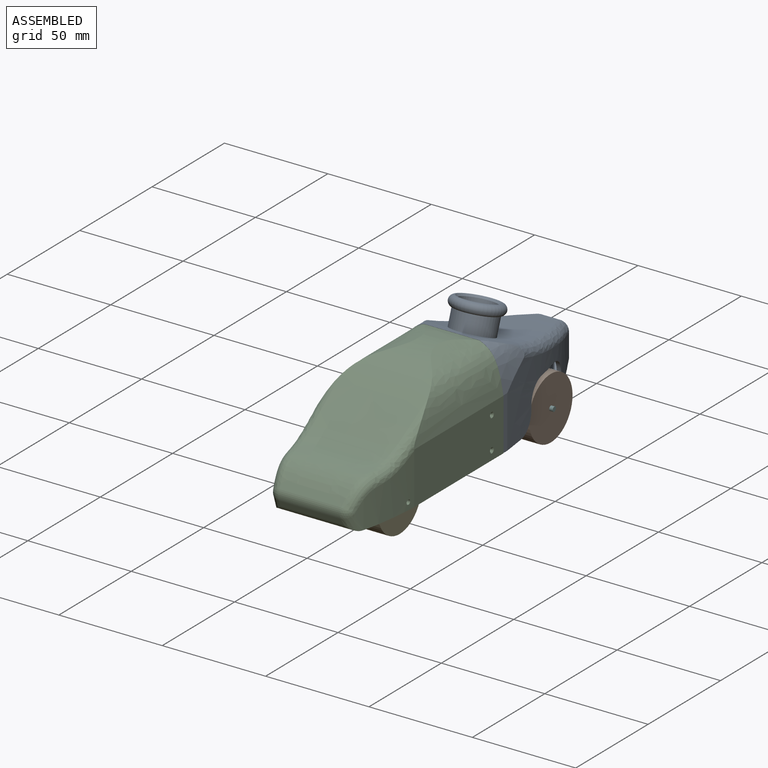
[diagram: assembled view]
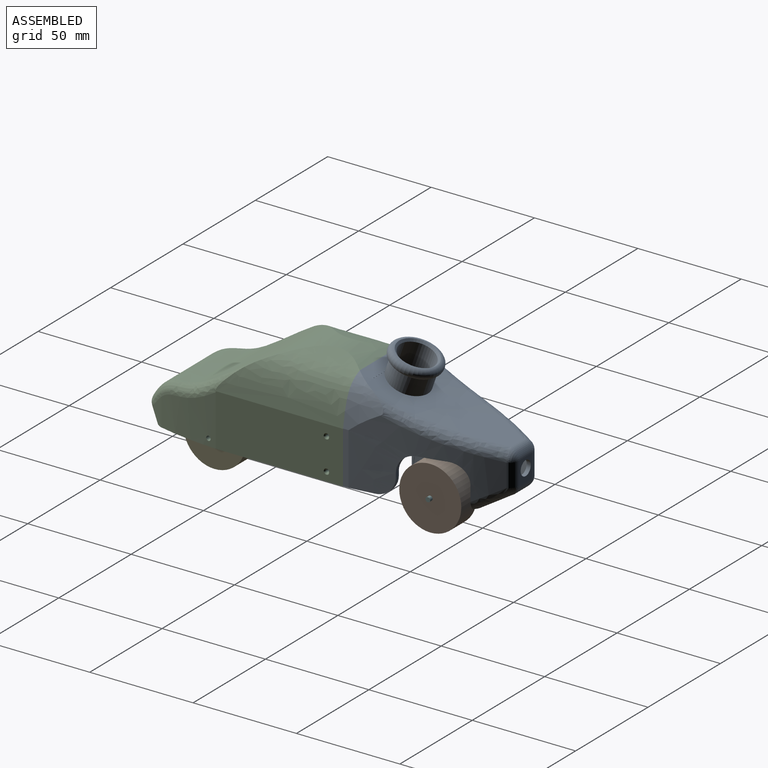
[diagram: assembled view, second angle]
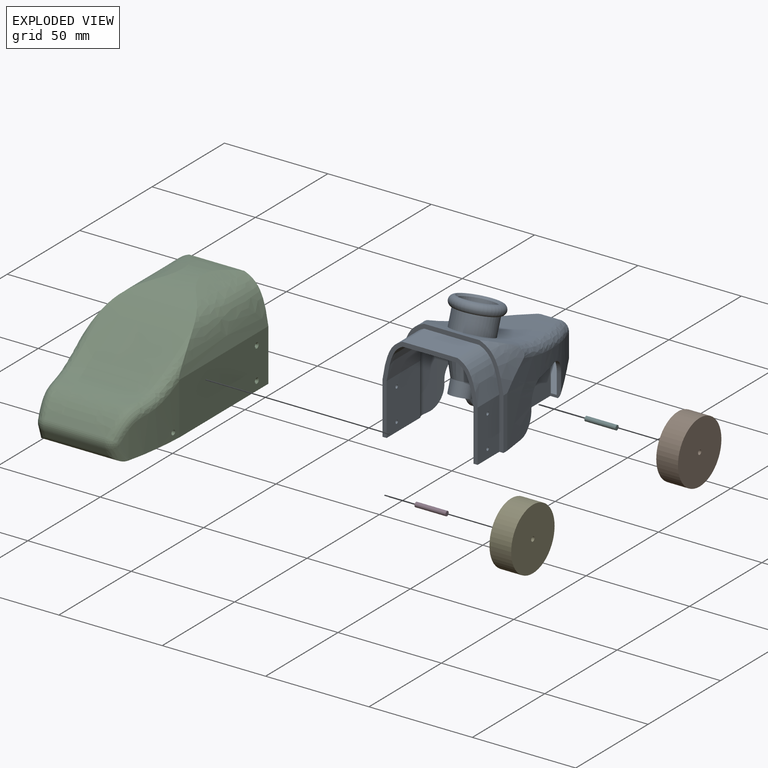
[diagram: exploded view]
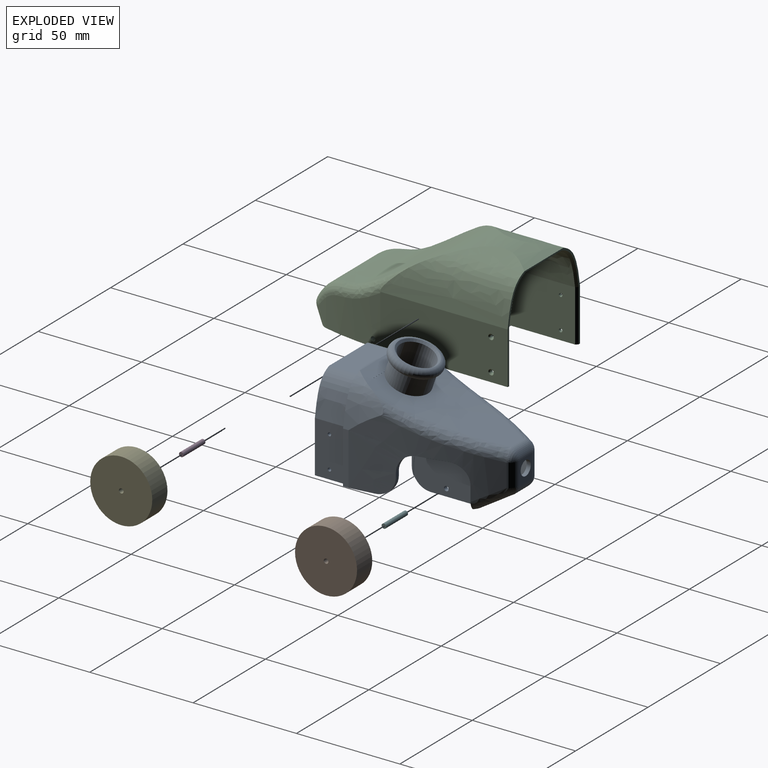
[diagram: exploded view, second angle]
ASSEMBLY  parts=6 mates=5
PART A: 112 faces, bbox 53.6x87.9x60.9 mm
  f0: plane 26.12x17.42mm, normal (0,-0.5,0.87), area 356.7mm2, adj f1,f2,f8,f15,f22,f67,f68,f69
  f1: extruded ~57.18x36.15mm, area 1111.7mm2, adj f0,f3,f9,f14,f22,f45,f74,f75
  f2: extruded ~57.18x36.15mm, area 1111.7mm2, adj f0,f4,f9,f13,f22,f46,f80,f81
  f3: plane 29.55x4.05mm, normal (0,0,-1), area 75mm2, adj f1,f5,f16,f23,f24,f26,f28,f45
  f4: plane 29.55x4.05mm, normal (0,0,-1), area 75mm2, adj f2,f6,f17,f23,f25,f26,f31,f46
  f5: extruded ~65.35x34.63mm, area 1174.5mm2, adj f3,f7,f16,f19,f44,f59,f74,f75
  f6: extruded ~65.35x34.63mm, area 1174.5mm2, adj f4,f17,f18,f42,f43,f52,f80,f81
  f7: bspline ~17.69x13.23mm, area 115mm2, adj f5,f15,f20,f58,f74
  f8: plane 32.01x31.57mm, normal (-1,0,0), area 327.1mm2, adj f0,f72,f73,f74,f77,f79,f88,f101
  f9: extruded ~63.04x40.99mm, area 1263.2mm2, adj f1,f2,f13,f14,f22,f33,f34,f35
  f10: plane 8.69x0.04mm, normal (0,1,0), area 0.3mm2, adj f11,f12,f40,f61
  f11: plane 8.77x0.09mm, normal (0,0,1), area 0.8mm2, adj f10,f12,f40,f61
  f12: extruded ~66.91x38.48mm, area 1648.5mm2, adj f10,f11,f18,f19,f23,f38,f39,f40
  f13: extruded ~14.59x10.3mm, area 63.7mm2, adj f2,f9,f46
  f14: extruded ~14.59x10.3mm, area 63.7mm2, adj f1,f9,f45
  f15: plane 26.96x25.35mm, normal (0,0,-1), area 178.2mm2, adj f0,f7,f20,f42,f69,f71,f74,f76
  f16: plane 25.19x2.63mm, normal (-1,0,0), area 66.3mm2, adj f3,f5,f19,f23
  f17: plane 25.19x2.63mm, normal (1,0,0), area 66.3mm2, adj f4,f6,f18,f23
  f18: extruded ~21.04x17.77mm, area 259mm2, adj f6,f12,f17,f23,f43
  f19: extruded ~21.04x17.77mm, area 259mm2, adj f5,f12,f16,f23,f44
  f20: plane 19.38x12.06mm, normal (0,0.5,-0.87), area 200.7mm2, adj f7,f15,f42,f56
  f21: plane 11.04x9.01mm, normal (0,1,0), area 61mm2, adj f51,f52,f55,f56,f59
  f22: plane 15.19x12.84mm, normal (0,-1,0), area 156.6mm2, adj f0,f1,f2,f9,f51
  f23: plane 53.64x48.74mm, normal (0,-1,0), area 253.3mm2, adj f3,f4,f12,f16,f17,f18,f19,f27
  f24: plane 24.9x23.21mm, normal (1,0,0), area 573.6mm2, adj f3,f26,f37,f45,f49,f50
  f25: plane 24.9x23.21mm, normal (-1,0,0), area 573.6mm2, adj f4,f26,f34,f46,f47,f48
  f26: plane 46x44.13mm, normal (0,-1,0), area 240.1mm2, adj f3,f4,f24,f25,f27,f28,f29,f30
  f27: plane 26.55x15mm, normal (0,0,1), area 398.2mm2, adj f23,f26,f29,f30
  f28: plane 25.05x15mm, normal (-1,0,0), area 371.4mm2, adj f3,f23,f26,f29,f49,f50
  f29: extruded ~19.08x15mm, area 338.1mm2, adj f23,f26,f27,f28
  f30: extruded ~15x2.8mm, area 48.1mm2, adj f23,f26,f27,f32
  f31: plane 25.05x15mm, normal (1,0,0), area 371.4mm2, adj f4,f23,f26,f32,f47,f48
  f32: extruded ~17.54x15mm, area 290mm2, adj f23,f26,f30,f31
  f33: plane 3.59x2.97mm, normal (0,1,0), area 4.4mm2, adj f9,f34,f46
  f34: extruded ~23.21x17.11mm, area 426.5mm2, adj f9,f25,f26,f33,f35,f46
  f35: plane 26.23x20.82mm, normal (0,0,-1), area 532.6mm2, adj f9,f26,f34,f37,f66
  f36: plane 3.59x2.97mm, normal (0,1,0), area 4.4mm2, adj f9,f37,f45
  f37: extruded ~23.21x17.11mm, area 426.5mm2, adj f9,f24,f26,f35,f36,f45
  f38: plane 8.69x0.04mm, normal (0,1,0), area 0.3mm2, adj f12,f39,f41,f61
  f39: plane 8.77x0.09mm, normal (0,0,1), area 0.8mm2, adj f12,f38,f41,f61
  f40: extruded ~0.09x0.09mm, area 0mm2, adj f10,f11,f12
  f41: extruded ~0.09x0.09mm, area 0mm2, adj f12,f38,f39
  f42: bspline ~20.54x14.85mm, area 115mm2, adj f6,f15,f20,f54,f81
  f43: bspline ~63.6x21.4mm, area 438.3mm2, adj f6,f12,f18,f53
  f44: bspline ~63.6x21.4mm, area 438.3mm2, adj f5,f12,f19,f57
  f45: cylinder r=5mm len=41.94mm, axis (0,0,-1), area 146mm2, adj f1,f3,f9,f14,f24,f36,f37
  f46: cylinder r=5mm len=41.94mm, axis (0,0,-1), area 146mm2, adj f2,f4,f9,f13,f25,f33,f34
  f47: cylinder r=0.82mm len=2mm, axis (-1,0,0), area 10.4mm2, adj f25,f31
  f48: cylinder r=0.82mm len=2mm, axis (-1,0,0), area 10.4mm2, adj f25,f31
  f49: cylinder r=0.82mm len=2mm, axis (-1,0,0), area 10.4mm2, adj f24,f28
  f50: cylinder r=0.82mm len=2mm, axis (-1,0,0), area 10.4mm2, adj f24,f28
  f51: cylinder r=3.5mm len=7mm, axis (0,1,0), area 44mm2, adj f21,f22
  f52: cylinder r=5mm len=11.04mm, axis (0,0,-1), area 62.6mm2, adj f6,f21,f53,f54
  f53: sphere r=5mm, area 34.6mm2, adj f43,f52,f55
  f54: sphere r=5mm, area 9.7mm2, adj f42,f52,f56
  f55: cylinder r=5mm len=9.01mm, axis (-1,0,0), area 61.3mm2, adj f12,f21,f53,f57
  f56: cylinder r=5mm len=9.01mm, axis (1,0,0), area 47.2mm2, adj f20,f21,f54,f58
  f57: sphere r=5mm, area 30mm2, adj f44,f55,f59
  f58: sphere r=5mm, area 17.6mm2, adj f7,f56,f59
  f59: cylinder r=5mm len=11.04mm, axis (0,0,-1), area 62.6mm2, adj f5,f21,f57,f58
  f60: cylinder r=8.5mm len=22.59mm, axis (0,0.33,0.94), area 961.3mm2, adj f65,f106
  f61: cylinder r=10mm len=21.79mm, axis (0,-0.33,-0.94), area 534.7mm2, adj f10,f11,f12,f38,f39,f63
  f62: cylinder r=12mm len=24mm, axis (0,-0.33,-0.94), area 3.8mm2, adj f63,f64
  f63: torus R=9.5mm, axis (0,-0.33,-0.94), area 242.8mm2, adj f61,f62
  f64: torus R=9.5mm, axis (0,0.33,0.94), area 273.7mm2, adj f62,f65
  f65: cone r=9.5mm half-angle=45deg, axis (0,0.33,0.94), area 80mm2, adj f60,f64
  f66: cylinder r=10mm len=20.16mm, axis (0,0.33,0.94), area 215.9mm2, adj f9,f35,f89,f90,f91,f92,f108
  f67: plane 32.01x31.57mm, normal (1,0,0), area 327.1mm2, adj f0,f68,f70,f81,f83,f85,f93,f97
  f68: plane 26.61x7.72mm, normal (0,1,0), area 68.7mm2, adj f0,f9,f67,f69,f91,f93
  f69: plane 32.84x32.01mm, normal (-1,0,0), area 895.4mm2, adj f0,f15,f68,f70,f86,f91,f105
  f70: plane 24.7x2.79mm, normal (0,-1,0), area 61.8mm2, adj f67,f69,f91,f92,f93,f105
  f71: plane 32.84x32.01mm, normal (1,0,0), area 895.4mm2, adj f0,f15,f72,f73,f87,f89,f104
  f72: plane 26.61x7.72mm, normal (0,1,0), area 68.7mm2, adj f0,f8,f9,f71,f88,f89
  f73: plane 24.7x2.79mm, normal (0,-1,0), area 61.8mm2, adj f8,f71,f88,f89,f90,f104
  f74: plane 11.4x5.65mm, normal (0,-1,0), area 28mm2, adj f0,f1,f5,f7,f8,f15,f76,f95
  f75: plane 14.27x6.18mm, normal (0,0,-1), area 26.7mm2, adj f1,f5,f95,f102
  f76: plane 31x20mm, normal (-1,0,0), area 569.7mm2, adj f15,f74,f77,f79,f87,f101,f103,f104
  f77: plane 5.96x0.25mm, normal (0,1,0), area 1.5mm2, adj f8,f76,f101,f104
  f78: plane 2.03x2mm, normal (0,1,0), area 4.1mm2, adj f1,f5,f100,f102
  f79: plane 13x0.25mm, normal (0,0,-1), area 3.2mm2, adj f8,f76,f101,f103
  f80: plane 2.03x2mm, normal (0,1,0), area 4.1mm2, adj f2,f6,f96,f99
  f81: plane 11.4x5.65mm, normal (0,-1,0), area 28mm2, adj f0,f2,f6,f15,f42,f67,f84,f94
  f82: plane 14.27x6.23mm, normal (0,0,-1), area 26.7mm2, adj f2,f6,f94,f99
  f83: plane 5.96x0.25mm, normal (0,1,0), area 1.5mm2, adj f67,f84,f97,f105
  f84: plane 31x20mm, normal (1,0,0), area 569.7mm2, adj f15,f81,f83,f85,f86,f97,f98,f105
  f85: plane 13x0.25mm, normal (0,0,-1), area 3.3mm2, adj f67,f84,f97,f98
  f86: cylinder r=1.12mm len=2.25mm, axis (-1,0,0), area 15.9mm2, adj f69,f84
  f87: cylinder r=1.12mm len=2.25mm, axis (-1,0,0), area 15.9mm2, adj f71,f76
  f88: bspline ~42.09x12.57mm, area 132.1mm2, adj f8,f9,f72,f73,f90
  f89: bspline ~42.09x12.57mm, area 131.6mm2, adj f9,f66,f71,f72,f73,f90
  f90: cylinder r=2.5mm len=6.93mm, axis (-1,0,0), area 15.2mm2, adj f9,f66,f73,f88,f89
  f91: bspline ~42.09x12.57mm, area 131.6mm2, adj f9,f66,f68,f69,f70,f92
  f92: cylinder r=2.5mm len=6.93mm, axis (-1,0,0), area 15.2mm2, adj f9,f66,f70,f91,f93
  f93: bspline ~42.09x12.57mm, area 132.1mm2, adj f9,f67,f68,f70,f92
  f94: cylinder r=9mm len=9mm, axis (1,0,0), area 29.6mm2, adj f2,f6,f81,f82
  f95: cylinder r=9mm len=9mm, axis (1,0,0), area 29.6mm2, adj f1,f5,f74,f75
  f96: cylinder r=9mm len=9mm, axis (-1,0,0), area 28.6mm2, adj f2,f4,f6,f80
  f97: cylinder r=9mm len=9mm, axis (-1,0,0), area 3.5mm2, adj f67,f83,f84,f85
  f98: cylinder r=9mm len=9mm, axis (1,0,0), area 3.5mm2, adj f67,f81,f84,f85
  f99: cylinder r=9mm len=9mm, axis (-1,0,0), area 28.7mm2, adj f2,f6,f80,f82
  f100: cylinder r=9mm len=9mm, axis (-1,0,0), area 28.6mm2, adj f1,f3,f5,f78
  f101: cylinder r=9mm len=9mm, axis (-1,0,0), area 3.5mm2, adj f8,f76,f77,f79
  f102: cylinder r=9mm len=9mm, axis (-1,0,0), area 28.7mm2, adj f1,f5,f75,f78
  f103: cylinder r=9mm len=9mm, axis (1,0,0), area 3.5mm2, adj f8,f74,f76,f79
  f104: cylinder r=9mm len=9mm, axis (1,0,0), area 32.8mm2, adj f8,f15,f71,f73,f76,f77
  f105: cylinder r=9mm len=9mm, axis (1,0,0), area 32.8mm2, adj f15,f67,f69,f70,f83,f84
  f106: plane 17x16.06mm, normal (0,0.33,0.94), area 4.7mm2, adj f60,f107
  f107: cone r=8.41mm half-angle=19.2deg, axis (0,0.33,0.94), area 559.1mm2, adj f106,f110
  f108: cone r=10mm half-angle=19.2deg, axis (0,0.33,0.94), area 708.2mm2, adj f66,f109
  f109: cylinder r=5.09mm len=11.75mm, axis (0,0.33,0.94), area 207.8mm2, adj f108,f111
  f110: cylinder r=3.5mm len=8.75mm, axis (0,0.33,0.94), area 142.9mm2, adj f107,f111
  f111: plane 10.18x9.61mm, normal (0,-0.33,-0.94), area 42.9mm2, adj f109,f110
PART B: 4 faces, bbox 10.5x30x30 mm
  f0: cylinder r=1.12mm len=10.5mm, axis (-1,0,0), area 74.2mm2, adj f2,f3
  f1: cylinder r=15mm len=30mm, axis (-1,0,0), area 989.6mm2, adj f2,f3
  f2: plane 30x30mm, normal (1,0,0), area 702.9mm2, adj f0,f1
  f3: plane 30x30mm, normal (-1,0,0), area 702.9mm2, adj f0,f1
PART C: 62 faces, bbox 52.7x99.8x54 mm
  f0: plane 13.53x1.78mm, normal (0,-1,0), area 24.1mm2, adj f7,f47,f51,f55
  f1: plane 19.5x13.53mm, normal (0,-1,0), area 263.8mm2, adj f42,f45,f51,f53
  f2: extruded ~33.52x24.62mm, area 572.6mm2, adj f20,f24,f30,f33,f48
  f3: extruded ~33.52x24.62mm, area 572.6mm2, adj f4,f22,f26,f27,f50
  f4: plane 91.94x6.72mm, normal (0,0,-1), area 188.2mm2, adj f3,f5,f8,f13,f17,f22,f25,f26
  f5: plane 45.84x24.5mm, normal (0,1,0), area 624.5mm2, adj f4,f12,f13,f24,f42,f43,f44,f45
  f6: plane 13.53x1.78mm, normal (0,-1,0), area 24.1mm2, adj f8,f43,f51,f56
  f7: extruded ~32.21x21.53mm, area 529.3mm2, adj f0,f11,f18,f24,f28,f51,f55
  f8: extruded ~32.21x21.53mm, area 529.3mm2, adj f4,f6,f11,f18,f28,f51,f56
  f9: extruded ~59.24x44.82mm, area 2252.2mm2, adj f14,f16,f52,f59
  f10: plane 30.77x3.25mm, normal (0,-0.89,-0.45), area 110.2mm2, adj f26,f28,f30,f31
  f11: plane 36.62x8.43mm, normal (0,0.89,0.45), area 327.7mm2, adj f7,f8,f18,f28
  f12: extruded ~25.55x1.23mm, area 31.2mm2, adj f5,f14,f15,f24,f52
  f13: extruded ~25.55x1.23mm, area 31.2mm2, adj f4,f5,f16,f17,f52
  f14: extruded ~61.68x21.66mm, area 1273mm2, adj f9,f12,f15,f52,f58,f59
  f15: plane 60.56x25.05mm, normal (-1,0,0), area 1512.6mm2, adj f12,f14,f24,f36,f37,f57
  f16: extruded ~61.68x21.66mm, area 1273mm2, adj f9,f13,f17,f52,f59,f60
  f17: plane 60.56x25.05mm, normal (1,0,0), area 1512.6mm2, adj f4,f13,f16,f34,f35,f61
  f18: extruded ~43.7x22.62mm, area 1047.1mm2, adj f7,f8,f11,f51
  f19: extruded ~61.41x23.51mm, area 1429.8mm2, adj f20,f23,f25,f33
  f20: plane 61.71x25.27mm, normal (1,0,0), area 1541.2mm2, adj f2,f19,f24,f25,f33,f38,f39
  f21: extruded ~61.41x23.51mm, area 1429.8mm2, adj f22,f23,f25,f27
  f22: plane 61.71x25.27mm, normal (-1,0,0), area 1541.2mm2, adj f3,f4,f21,f25,f27,f40,f41
  f23: extruded ~97.76x41.39mm, area 3825.8mm2, adj f19,f21,f25,f27,f31,f33
  f24: plane 91.95x6.73mm, normal (0,0,-1), area 188.9mm2, adj f2,f5,f7,f12,f15,f20,f25,f28
  f25: plane 52.74x47.85mm, normal (0,1,0), area 120.9mm2, adj f4,f19,f20,f21,f22,f23,f24,f57
  f26: bspline ~15x9.98mm, area 44.4mm2, adj f3,f4,f10,f28,f29
  f27: bspline ~56.6x33.88mm, area 361.8mm2, adj f3,f21,f22,f23,f29
  f28: cylinder r=5mm len=40.9mm, axis (-1,0,0), area 165.3mm2, adj f4,f7,f8,f10,f11,f24,f26,f30
  f29: sphere r=5mm, area 15.9mm2, adj f26,f27,f31
  f30: bspline ~15x9.98mm, area 44.4mm2, adj f2,f10,f24,f28,f32
  f31: cylinder r=5mm len=29.72mm, axis (-1,0,0), area 154.8mm2, adj f10,f23,f29,f32
  f32: sphere r=5mm, area 15.9mm2, adj f30,f31,f33
  f33: bspline ~56.6x33.88mm, area 361.8mm2, adj f2,f19,f20,f23,f32
  f34: cylinder r=0.82mm len=1.65mm, axis (-1,0,0), area 7.8mm2, adj f17,f41
  f35: cylinder r=0.82mm len=1.65mm, axis (-1,0,0), area 7.8mm2, adj f17,f40
  f36: cylinder r=0.82mm len=1.65mm, axis (-1,0,0), area 7.8mm2, adj f15,f39
  f37: cylinder r=0.82mm len=1.65mm, axis (-1,0,0), area 7.8mm2, adj f15,f38
  f38: cone r=0.82mm half-angle=45deg, axis (1,0,0), area 4.8mm2, adj f20,f37
  f39: cone r=0.82mm half-angle=45deg, axis (1,0,0), area 4.8mm2, adj f20,f36
  f40: cone r=1.32mm half-angle=45deg, axis (-1,0,0), area 4.8mm2, adj f22,f35
  f41: cone r=1.32mm half-angle=45deg, axis (-1,0,0), area 4.8mm2, adj f22,f34
  f42: plane 19.5x6.4mm, normal (-1,0,0), area 88.8mm2, adj f1,f5,f44,f49,f51,f53,f54
  f43: plane 20x6.4mm, normal (1,0,0), area 93mm2, adj f4,f5,f6,f44,f50,f51,f56
  f44: plane 11x6.4mm, normal (0,0,-1), area 70.4mm2, adj f5,f42,f43,f51
  f45: plane 19.5x6.4mm, normal (1,0,0), area 88.8mm2, adj f1,f5,f46,f49,f51,f53,f54
  f46: plane 11x6.4mm, normal (0,0,-1), area 70.4mm2, adj f5,f45,f47,f51
  f47: plane 20x6.4mm, normal (-1,0,0), area 93mm2, adj f0,f5,f24,f46,f48,f51,f55
  f48: cylinder r=1.12mm len=3.99mm, axis (1,0,0), area 28.2mm2, adj f2,f47
  f49: cylinder r=1.12mm len=19.5mm, axis (1,0,0), area 137.8mm2, adj f42,f45
  f50: cylinder r=1.12mm len=3.99mm, axis (1,0,0), area 28.2mm2, adj f3,f43
  f51: cylinder r=5mm len=45.06mm, axis (-1,0,0), area 335.9mm2, adj f0,f1,f6,f7,f8,f18,f42,f43
  f52: cylinder r=5mm len=45.85mm, axis (-1,0,0), area 225.9mm2, adj f5,f9,f12,f13,f14,f16
  f53: plane 19.5x2.5mm, normal (0,-0.71,-0.71), area 68.9mm2, adj f1,f42,f45,f54
  f54: plane 19.5x2.5mm, normal (0,0.71,-0.71), area 68.9mm2, adj f5,f42,f45,f53
  f55: plane 3.01x3.01mm, normal (0,-0.71,-0.71), area 8.1mm2, adj f0,f7,f24,f47
  f56: plane 3.01x3.01mm, normal (0,-0.71,-0.71), area 8.1mm2, adj f4,f6,f8,f43
  f57: plane 25.12x1mm, normal (-0.71,0.71,0), area 35.5mm2, adj f15,f24,f25,f58
  f58: bspline ~20.71x12.35mm, area 34.7mm2, adj f14,f25,f57,f59
  f59: plane 25.1x1.29mm, normal (0,0.6,-0.8), area 38.7mm2, adj f9,f14,f16,f25,f58,f60
  f60: bspline ~20.71x12.35mm, area 34.7mm2, adj f16,f25,f59,f61
  f61: plane 25.12x1mm, normal (0.71,0.71,0), area 35.5mm2, adj f4,f17,f25,f60
PART D: 3 faces, bbox 15x2.3x2.3 mm
  f0: cylinder r=1.12mm len=15mm, axis (-1,0,0), area 106mm2, adj f1,f2
  f1: plane 2.25x2.25mm, normal (1,0,0), area 4mm2, adj f0
  f2: plane 2.25x2.25mm, normal (-1,0,0), area 4mm2, adj f0
PART E: same geometry as B
PART F: same geometry as D
PLACE A at identity fixed
PLACE B rot(axis=(1,0,0),135deg) t=(15.3,39.08,3.5)mm
PLACE C t=(0,0.01,-0.12)mm
PLACE D t=(5.75,-23.59,0.19)mm
PLACE E t=(15.3,-65.29,3.38)mm
PLACE F t=(7.25,80.79,0.3)mm
MATE fastened F.f0 <-> A.f86  axis (-1,0,0) through (7.25,39.08,3.5)mm
MATE fastened D.f0 <-> C.f48  axis (1,0,0) through (20.75,-65.29,3.38)mm
MATE revolute E.f1 <-> D.f0  axis (1,0,0) through (20.55,-65.29,3.38)mm
MATE revolute B.f1 <-> F.f0  axis (1,0,0) through (20.55,39.08,3.5)mm
MATE slider A.f31 <-> C.f15  axis (1,0,0) through (23,-7.49,12.53)mm
